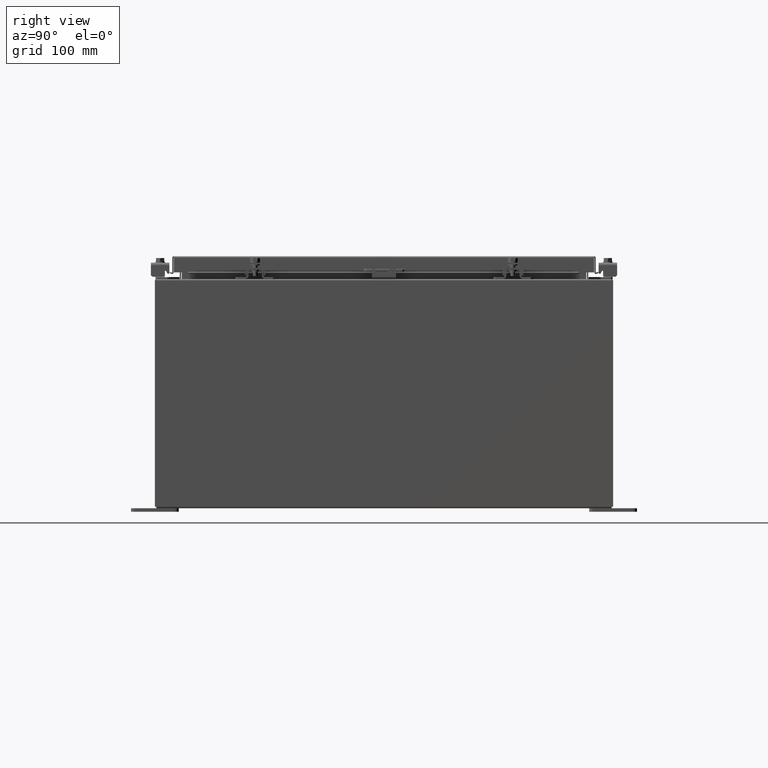
[diagram: clean part render]
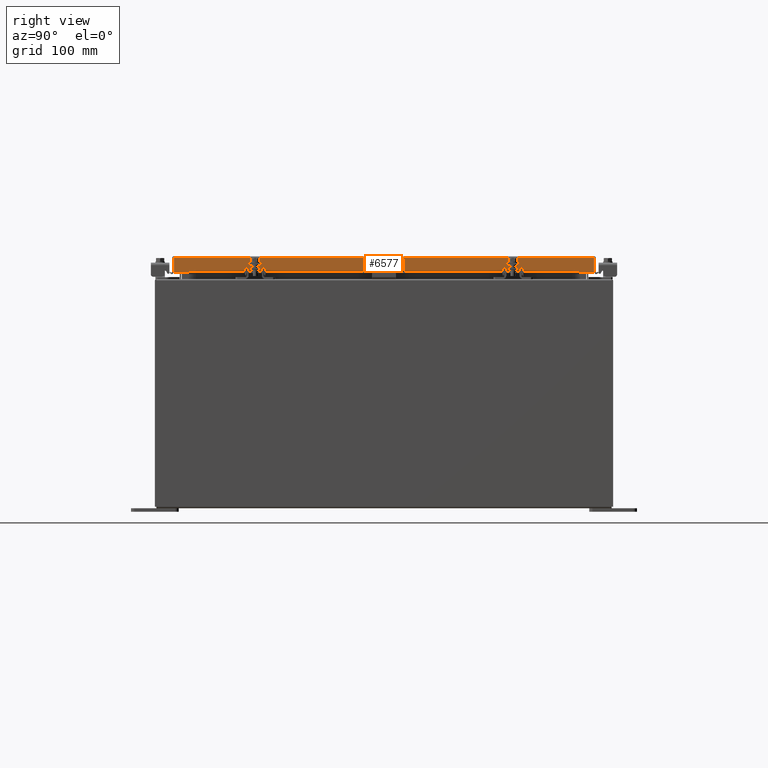
[diagram: same view with one face highlighted and labeled with its STEP entity id]
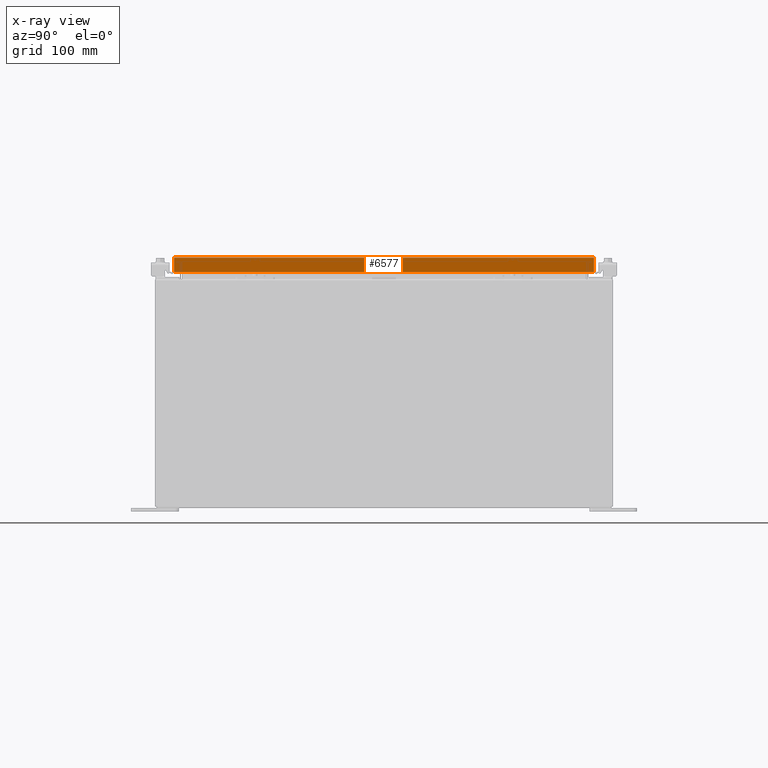
[diagram: x-ray of the same camera — body ghosted, the highlighted face saturated]
A machine part, right view. The second image highlights one B-rep face of the part: STEP entity #6577.
The next image is the same camera in x-ray: the body ghosted, the highlighted face saturated — about 0% of this face is hidden behind the body in this view.
In plain terms, the highlighted planar face has unit normal (1, 0, 0).
Its self-contained STEP definition (entity closure, byte-faithful):
#457 = ORIENTED_EDGE ( 'NONE', *, *, #13787, .T. ) ;
#474 = ORIENTED_EDGE ( 'NONE', *, *, #3336, .F. ) ;
#1005 = LINE ( 'NONE', #7619, #20823 ) ;
#1401 = CARTESIAN_POINT ( 'NONE',  ( 11.07799999999999800, -11.00515786437626400, -0.8499999999999996400 ) ) ;
#1809 = DIRECTION ( 'NONE',  ( 0.0000000000000000000, -1.000000000000000000, 0.0000000000000000000 ) ) ;
#3037 = FACE_OUTER_BOUND ( 'NONE', #11013, .T. ) ;
#3336 = EDGE_CURVE ( 'NONE', #29016, #15983, #24354, .T. ) ;
#3467 = VECTOR ( 'NONE', #25182, 39.37007874015748100 ) ;
#4225 = ORIENTED_EDGE ( 'NONE', *, *, #15148, .F. ) ;
#5279 = DIRECTION ( 'NONE',  ( 0.0000000000000000000, -1.000000000000000000, 0.0000000000000000000 ) ) ;
#5848 = EDGE_CURVE ( 'NONE', #11515, #29016, #10003, .T. ) ;
#6213 = ORIENTED_EDGE ( 'NONE', *, *, #29086, .T. ) ;
#6577 = ADVANCED_FACE ( 'NONE', ( #3037 ), #8218, .T. ) ;
#7238 = VERTEX_POINT ( 'NONE', #20998 ) ;
#7607 = CARTESIAN_POINT ( 'NONE',  ( 11.07799999999999600, -11.00515786437626900, -0.07469999999999978000 ) ) ;
#7619 = CARTESIAN_POINT ( 'NONE',  ( 11.07799999999999400, 10.25515786437627200, -0.8500000000000010900 ) ) ;
#8218 = PLANE ( 'NONE',  #19890 ) ;
#9176 = LINE ( 'NONE', #29743, #15039 ) ;
#9532 = DIRECTION ( 'NONE',  ( -2.818880942772360100E-015, -6.982962677686267500E-015, 1.000000000000000000 ) ) ;
#9963 = CARTESIAN_POINT ( 'NONE',  ( 11.07799999999999800, 11.00515786437627200, -0.8499999999999996400 ) ) ;
#10003 = LINE ( 'NONE', #15027, #3467 ) ;
#10725 = DIRECTION ( 'NONE',  ( 2.818880942772360100E-015, 0.0000000000000000000, -1.000000000000000000 ) ) ;
#11013 = EDGE_LOOP ( 'NONE', ( #474, #28912, #19724, #4225, #457, #6213 ) ) ;
#11515 = VERTEX_POINT ( 'NONE', #26493 ) ;
#13787 = EDGE_CURVE ( 'NONE', #31732, #7238, #9176, .T. ) ;
#15027 = CARTESIAN_POINT ( 'NONE',  ( 11.07799999999999800, -11.09400000000000100, -0.8499999999999996400 ) ) ;
#15039 = VECTOR ( 'NONE', #9532, 39.37007874015748100 ) ;
#15148 = EDGE_CURVE ( 'NONE', #31732, #28417, #18120, .T. ) ;
#15322 = LINE ( 'NONE', #31865, #22027 ) ;
#15854 = EDGE_CURVE ( 'NONE', #28417, #11515, #1005, .T. ) ;
#15983 = VERTEX_POINT ( 'NONE', #23094 ) ;
#17638 = VECTOR ( 'NONE', #22754, 39.37007874015748100 ) ;
#18120 = LINE ( 'NONE', #20266, #31611 ) ;
#19724 = ORIENTED_EDGE ( 'NONE', *, *, #15854, .F. ) ;
#19890 = AXIS2_PLACEMENT_3D ( 'NONE', #23261, #25810, #10725 ) ;
#20266 = CARTESIAN_POINT ( 'NONE',  ( 11.07799999999999800, -11.09400000000000100, -0.8499999999999996400 ) ) ;
#20823 = VECTOR ( 'NONE', #25190, 39.37007874015748100 ) ;
#20998 = CARTESIAN_POINT ( 'NONE',  ( 11.07799999999999600, 11.00515786437626900, -0.08770000000000007000 ) ) ;
#22027 = VECTOR ( 'NONE', #1809, 39.37007874015748100 ) ;
#22754 = DIRECTION ( 'NONE',  ( -2.818880942772360100E-015, -6.982962677686267500E-015, 1.000000000000000000 ) ) ;
#23094 = CARTESIAN_POINT ( 'NONE',  ( 11.07799999999999600, -11.00515786437626900, -0.08770000000000007000 ) ) ;
#23261 = CARTESIAN_POINT ( 'NONE',  ( 11.07799999999999600, 0.0000000000000000000, 3.148837674004377800E-014 ) ) ;
#24354 = LINE ( 'NONE', #7607, #17638 ) ;
#25182 = DIRECTION ( 'NONE',  ( 0.0000000000000000000, -1.000000000000000000, 0.0000000000000000000 ) ) ;
#25190 = DIRECTION ( 'NONE',  ( 0.0000000000000000000, -1.000000000000000000, 0.0000000000000000000 ) ) ;
#25810 = DIRECTION ( 'NONE',  ( 1.000000000000000000, 0.0000000000000000000, 2.818880942772360100E-015 ) ) ;
#26133 = CARTESIAN_POINT ( 'NONE',  ( 11.07799999999999400, 10.25515786437626900, -0.8500000000000010900 ) ) ;
#26493 = CARTESIAN_POINT ( 'NONE',  ( 11.07799999999999400, -10.25515786437626400, -0.8500000000000010900 ) ) ;
#28417 = VERTEX_POINT ( 'NONE', #26133 ) ;
#28912 = ORIENTED_EDGE ( 'NONE', *, *, #5848, .F. ) ;
#29016 = VERTEX_POINT ( 'NONE', #1401 ) ;
#29086 = EDGE_CURVE ( 'NONE', #7238, #15983, #15322, .T. ) ;
#29743 = CARTESIAN_POINT ( 'NONE',  ( 11.07799999999999600, 11.00515786437626700, 1.083369833690287600E-013 ) ) ;
#31611 = VECTOR ( 'NONE', #5279, 39.37007874015748100 ) ;
#31732 = VERTEX_POINT ( 'NONE', #9963 ) ;
#31865 = CARTESIAN_POINT ( 'NONE',  ( 11.07799999999999600, 0.0000000000000000000, -0.08770000000000007000 ) ) ;